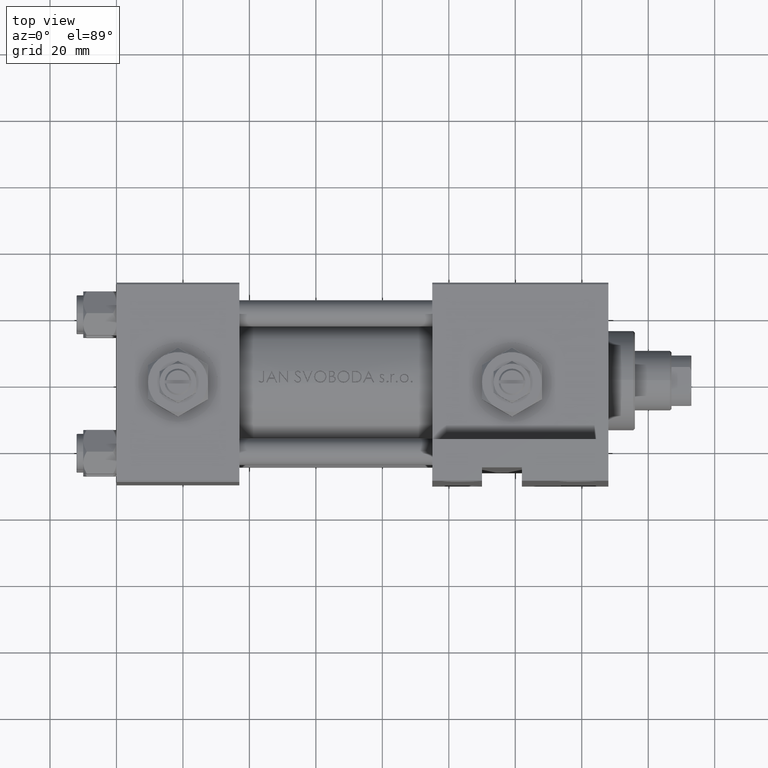
[diagram: clean part render]
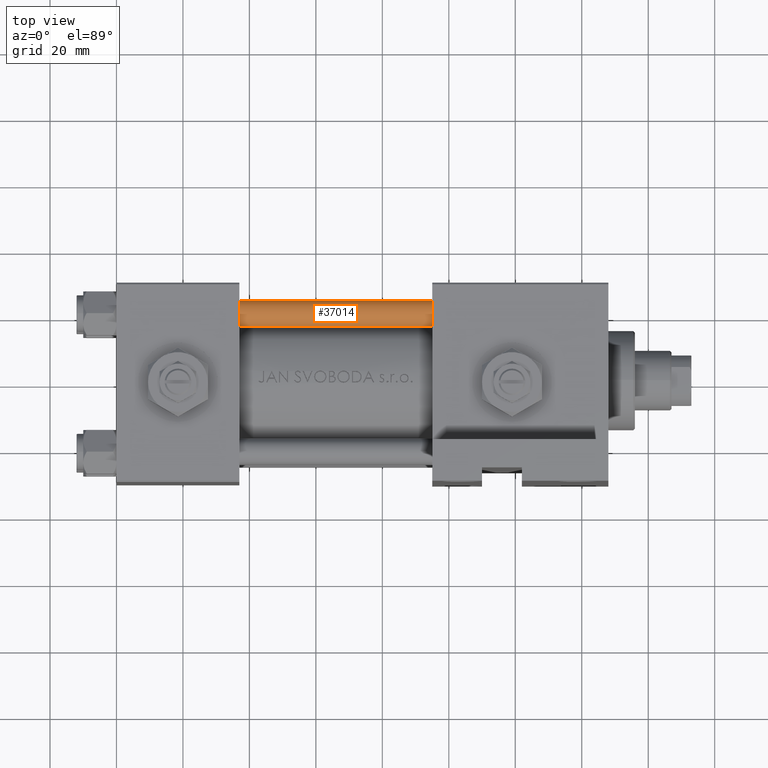
[diagram: same view with one face highlighted and labeled with its STEP entity id]
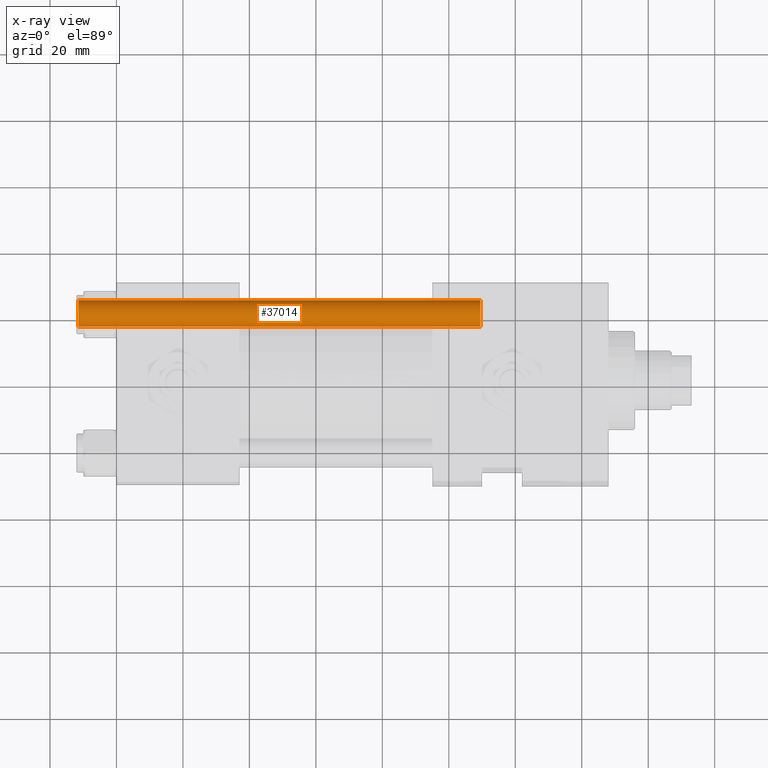
[diagram: x-ray of the same camera — body ghosted, the highlighted face saturated]
A machine part, top view. The second image highlights one B-rep face of the part: STEP entity #37014.
The next image is the same camera in x-ray: the body ghosted, the highlighted face saturated — about 0% of this face is hidden behind the body in this view.
In plain terms, the highlighted cylindrical surface (edge-blend (fillet) strip) has radius 4 mm, axis along (1, -0, 0).
Its self-contained STEP definition (entity closure, byte-faithful):
#1231 = ORIENTED_EDGE ( 'NONE', *, *, #18209, .T. ) ;
#1769 = CARTESIAN_POINT ( 'NONE',  ( -4.000000000000000000, 0.000000000000000000, 121.5000000000000426 ) ) ;
#2924 = VERTEX_POINT ( 'NONE', #35286 ) ;
#3960 = VERTEX_POINT ( 'NONE', #20838 ) ;
#4846 = CARTESIAN_POINT ( 'NONE',  ( -4.000000000000000000, 0.000000000000000000, 122.0000000000000000 ) ) ;
#6762 = EDGE_LOOP ( 'NONE', ( #43393, #33101, #47510, #1231 ) ) ;
#8916 = CARTESIAN_POINT ( 'NONE',  ( 0.000000000000000000, 0.000000000000000000, 121.5000000000000426 ) ) ;
#9803 = EDGE_CURVE ( 'NONE', #17502, #50368, #9848, .T. ) ;
#9848 = CIRCLE ( 'NONE', #22087, 4.000000000000000000 ) ;
#11515 = CARTESIAN_POINT ( 'NONE',  ( 0.000000000000000000, 0.000000000000000000, 122.0000000000000000 ) ) ;
#13879 = DIRECTION ( 'NONE',  ( -0.000000000000000000, -0.000000000000000000, 1.000000000000000000 ) ) ;
#14873 = VECTOR ( 'NONE', #20993, 1000.000000000000000 ) ;
#17502 = VERTEX_POINT ( 'NONE', #49985 ) ;
#18209 = EDGE_CURVE ( 'NONE', #3960, #2924, #22715, .T. ) ;
#19089 = EDGE_CURVE ( 'NONE', #17502, #2924, #43852, .T. ) ;
#19198 = DIRECTION ( 'NONE',  ( -1.000000000000000000, 0.000000000000000000, 0.000000000000000000 ) ) ;
#20838 = CARTESIAN_POINT ( 'NONE',  ( -4.000000000000000000, 0.000000000000000000, 0.5000000000000559552 ) ) ;
#20993 = DIRECTION ( 'NONE',  ( -0.000000000000000000, -0.000000000000000000, -1.000000000000000000 ) ) ;
#22087 = AXIS2_PLACEMENT_3D ( 'NONE', #8916, #40247, #24045 ) ;
#22308 = CARTESIAN_POINT ( 'NONE',  ( 0.000000000000000000, 0.000000000000000000, 0.5000000000000559552 ) ) ;
#22715 = CIRCLE ( 'NONE', #24400, 4.000000000000000000 ) ;
#23529 = FACE_OUTER_BOUND ( 'NONE', #6762, .T. ) ;
#24045 = DIRECTION ( 'NONE',  ( 1.000000000000000000, 0.000000000000000000, 0.000000000000000000 ) ) ;
#24400 = AXIS2_PLACEMENT_3D ( 'NONE', #22308, #13879, #40831 ) ;
#25649 = EDGE_CURVE ( 'NONE', #50368, #3960, #47722, .T. ) ;
#28444 = DIRECTION ( 'NONE',  ( -0.000000000000000000, -0.000000000000000000, -1.000000000000000000 ) ) ;
#33101 = ORIENTED_EDGE ( 'NONE', *, *, #9803, .T. ) ;
#35286 = CARTESIAN_POINT ( 'NONE',  ( 4.000000000000000000, 4.898587196589411843E-16, 0.5000000000000559552 ) ) ;
#35614 = AXIS2_PLACEMENT_3D ( 'NONE', #11515, #42050, #19198 ) ;
#37014 = ADVANCED_FACE ( 'NONE', ( #23529 ), #50034, .T. ) ;
#40247 = DIRECTION ( 'NONE',  ( 0.000000000000000000, 0.000000000000000000, -1.000000000000000000 ) ) ;
#40831 = DIRECTION ( 'NONE',  ( 1.000000000000000000, 0.000000000000000000, 0.000000000000000000 ) ) ;
#42050 = DIRECTION ( 'NONE',  ( -0.000000000000000000, -0.000000000000000000, -1.000000000000000000 ) ) ;
#43237 = VECTOR ( 'NONE', #28444, 1000.000000000000000 ) ;
#43393 = ORIENTED_EDGE ( 'NONE', *, *, #19089, .F. ) ;
#43852 = LINE ( 'NONE', #47977, #43237 ) ;
#47510 = ORIENTED_EDGE ( 'NONE', *, *, #25649, .T. ) ;
#47722 = LINE ( 'NONE', #4846, #14873 ) ;
#47977 = CARTESIAN_POINT ( 'NONE',  ( 4.000000000000000000, 4.898587196589411843E-16, 122.0000000000000000 ) ) ;
#49985 = CARTESIAN_POINT ( 'NONE',  ( 4.000000000000000000, 4.898587196589411843E-16, 121.5000000000000426 ) ) ;
#50034 = CYLINDRICAL_SURFACE ( 'NONE', #35614, 4.000000000000000000 ) ;
#50368 = VERTEX_POINT ( 'NONE', #1769 ) ;